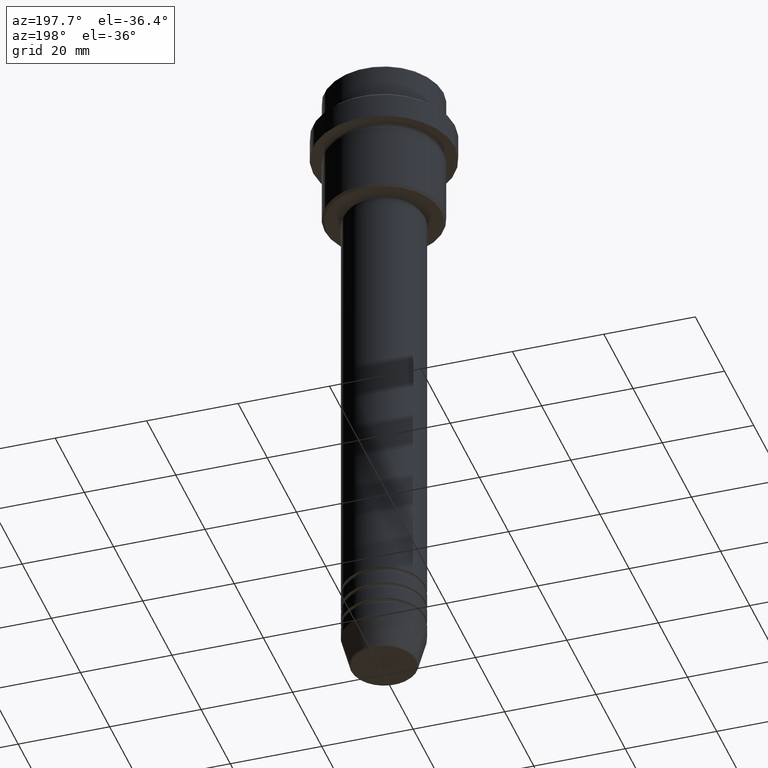
[diagram: clean part render]
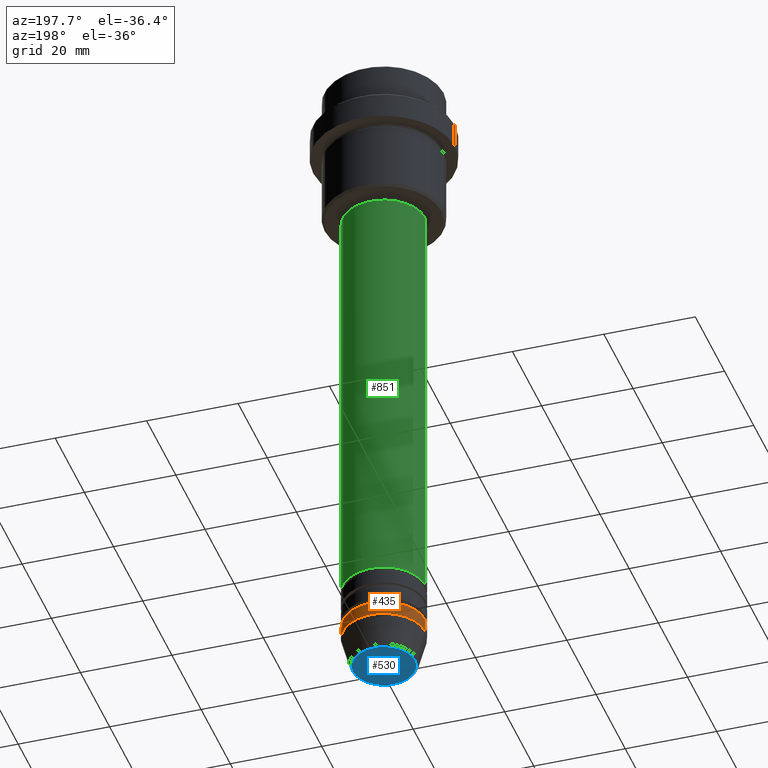
[diagram: same view with three faces highlighted in distinct colors, each labeled with its STEP entity id]
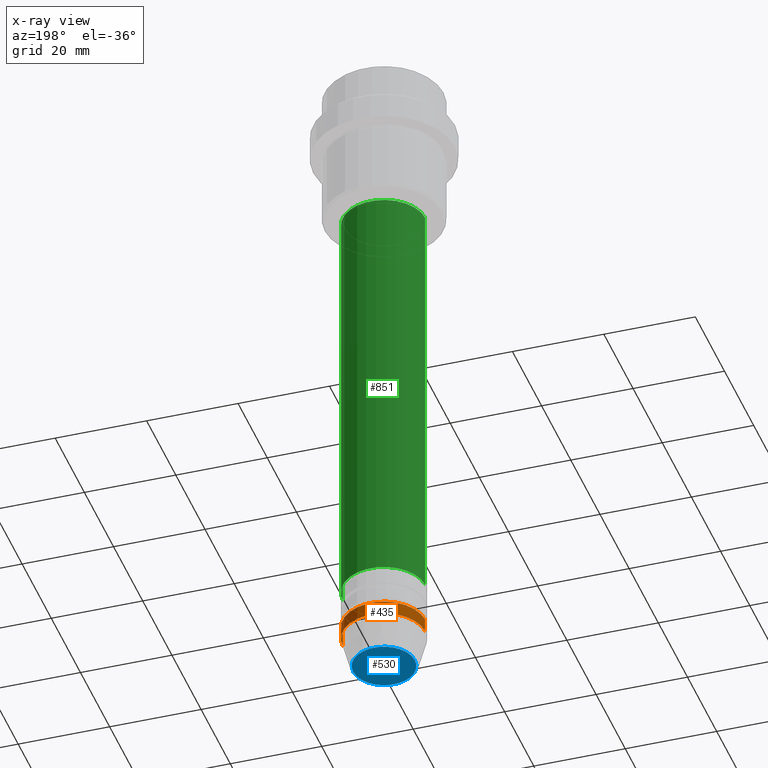
[diagram: x-ray of the same camera — body ghosted, the three highlighted faces saturated]
A machine part, auxiliary view with three faces highlighted in distinct colors.
The next image is the same camera in x-ray (body ghosted, the three faces saturated) — at least one of them is partly hidden behind the body in this view.
Their STEP definitions:

[orange] entity #435 — the highlighted cylindrical surface (partial cylindrical patch) has radius 9 mm, axis along (-0, -0, 1).
#8 = AXIS2_PLACEMENT_3D ( 'NONE', #1306, #543, #757 ) ;
#23 = CARTESIAN_POINT ( 'NONE',  ( 9.000000000000000000, 0.000000000000000000, -139.0000000000000000 ) ) ;
#72 = VERTEX_POINT ( 'NONE', #23 ) ;
#75 = DIRECTION ( 'NONE',  ( -0.000000000000000000, -0.000000000000000000, 1.000000000000000000 ) ) ;
#117 = DIRECTION ( 'NONE',  ( -0.000000000000000000, -0.000000000000000000, 1.000000000000000000 ) ) ;
#128 = LINE ( 'NONE', #657, #749 ) ;
#166 = FACE_OUTER_BOUND ( 'NONE', #1054, .T. ) ;
#291 = VECTOR ( 'NONE', #713, 1000.000000000000000 ) ;
#381 = DIRECTION ( 'NONE',  ( -0.000000000000000000, -0.000000000000000000, 1.000000000000000000 ) ) ;
#435 = ADVANCED_FACE ( 'NONE', ( #166 ), #1365, .T. ) ;
#447 = AXIS2_PLACEMENT_3D ( 'NONE', #1164, #75, #1296 ) ;
#468 = EDGE_CURVE ( 'NONE', #72, #866, #1258, .T. ) ;
#539 = ORIENTED_EDGE ( 'NONE', *, *, #468, .F. ) ;
#543 = DIRECTION ( 'NONE',  ( -0.000000000000000000, -0.000000000000000000, 1.000000000000000000 ) ) ;
#657 = CARTESIAN_POINT ( 'NONE',  ( -9.000000000000000000, 1.102182119232617714E-15, 0.000000000000000000 ) ) ;
#709 = EDGE_CURVE ( 'NONE', #72, #1135, #1062, .T. ) ;
#713 = DIRECTION ( 'NONE',  ( -0.000000000000000000, -0.000000000000000000, 1.000000000000000000 ) ) ;
#716 = ORIENTED_EDGE ( 'NONE', *, *, #709, .T. ) ;
#749 = VECTOR ( 'NONE', #117, 1000.000000000000000 ) ;
#757 = DIRECTION ( 'NONE',  ( 1.000000000000000000, 0.000000000000000000, 0.000000000000000000 ) ) ;
#773 = CARTESIAN_POINT ( 'NONE',  ( -9.000000000000000000, 1.102182119232617714E-15, -139.0000000000000000 ) ) ;
#774 = CARTESIAN_POINT ( 'NONE',  ( 9.000000000000000000, 0.000000000000000000, -136.0000000000000000 ) ) ;
#777 = CARTESIAN_POINT ( 'NONE',  ( -9.000000000000000000, 1.102182119232617714E-15, -136.0000000000000000 ) ) ;
#807 = ORIENTED_EDGE ( 'NONE', *, *, #873, .F. ) ;
#866 = VERTEX_POINT ( 'NONE', #774 ) ;
#873 = EDGE_CURVE ( 'NONE', #866, #1185, #1409, .T. ) ;
#925 = CARTESIAN_POINT ( 'NONE',  ( 0.000000000000000000, 0.000000000000000000, 0.000000000000000000 ) ) ;
#941 = CARTESIAN_POINT ( 'NONE',  ( 9.000000000000000000, 0.000000000000000000, 0.000000000000000000 ) ) ;
#1032 = ORIENTED_EDGE ( 'NONE', *, *, #1276, .T. ) ;
#1054 = EDGE_LOOP ( 'NONE', ( #716, #1032, #807, #539 ) ) ;
#1062 = CIRCLE ( 'NONE', #447, 9.000000000000000000 ) ;
#1135 = VERTEX_POINT ( 'NONE', #773 ) ;
#1164 = CARTESIAN_POINT ( 'NONE',  ( 0.000000000000000000, 0.000000000000000000, -139.0000000000000000 ) ) ;
#1185 = VERTEX_POINT ( 'NONE', #777 ) ;
#1258 = LINE ( 'NONE', #941, #291 ) ;
#1276 = EDGE_CURVE ( 'NONE', #1135, #1185, #128, .T. ) ;
#1291 = AXIS2_PLACEMENT_3D ( 'NONE', #925, #381, #1371 ) ;
#1296 = DIRECTION ( 'NONE',  ( 1.000000000000000000, 0.000000000000000000, 0.000000000000000000 ) ) ;
#1306 = CARTESIAN_POINT ( 'NONE',  ( 0.000000000000000000, 0.000000000000000000, -136.0000000000000000 ) ) ;
#1365 = CYLINDRICAL_SURFACE ( 'NONE', #1291, 9.000000000000000000 ) ;
#1371 = DIRECTION ( 'NONE',  ( 1.000000000000000000, 0.000000000000000000, 0.000000000000000000 ) ) ;
#1409 = CIRCLE ( 'NONE', #8, 9.000000000000000000 ) ;

[blue] entity #530 — the highlighted planar face has unit normal (0, -0, 1).
#6 = CARTESIAN_POINT ( 'NONE',  ( 0.000000000000000000, 0.000000000000000000, -146.0000000000000284 ) ) ;
#87 = ORIENTED_EDGE ( 'NONE', *, *, #610, .T. ) ;
#208 = VERTEX_POINT ( 'NONE', #911 ) ;
#312 = AXIS2_PLACEMENT_3D ( 'NONE', #347, #1014, #983 ) ;
#347 = CARTESIAN_POINT ( 'NONE',  ( 0.000000000000000000, 0.000000000000000000, -146.0000000000000284 ) ) ;
#473 = DIRECTION ( 'NONE',  ( 1.000000000000000000, 0.000000000000000000, 0.000000000000000000 ) ) ;
#530 = ADVANCED_FACE ( 'NONE', ( #803 ), #575, .F. ) ;
#554 = DIRECTION ( 'NONE',  ( 1.000000000000000000, 0.000000000000000000, 0.000000000000000000 ) ) ;
#575 = PLANE ( 'NONE',  #312 ) ;
#590 = CARTESIAN_POINT ( 'NONE',  ( -6.740692158992658278, 8.550696569392685681E-16, -146.0000000000000284 ) ) ;
#610 = EDGE_CURVE ( 'NONE', #208, #957, #988, .T. ) ;
#739 = ORIENTED_EDGE ( 'NONE', *, *, #1283, .T. ) ;
#803 = FACE_OUTER_BOUND ( 'NONE', #1393, .T. ) ;
#882 = DIRECTION ( 'NONE',  ( 0.000000000000000000, 0.000000000000000000, -1.000000000000000000 ) ) ;
#885 = DIRECTION ( 'NONE',  ( 0.000000000000000000, 0.000000000000000000, -1.000000000000000000 ) ) ;
#911 = CARTESIAN_POINT ( 'NONE',  ( 6.740692158992658278, 0.000000000000000000, -146.0000000000000284 ) ) ;
#930 = CIRCLE ( 'NONE', #1357, 6.740692158992658278 ) ;
#957 = VERTEX_POINT ( 'NONE', #590 ) ;
#983 = DIRECTION ( 'NONE',  ( 1.000000000000000000, 0.000000000000000000, 0.000000000000000000 ) ) ;
#988 = CIRCLE ( 'NONE', #1099, 6.740692158992658278 ) ;
#1014 = DIRECTION ( 'NONE',  ( 0.000000000000000000, -0.000000000000000000, 1.000000000000000000 ) ) ;
#1099 = AXIS2_PLACEMENT_3D ( 'NONE', #1103, #885, #473 ) ;
#1103 = CARTESIAN_POINT ( 'NONE',  ( 0.000000000000000000, 0.000000000000000000, -146.0000000000000284 ) ) ;
#1283 = EDGE_CURVE ( 'NONE', #957, #208, #930, .T. ) ;
#1357 = AXIS2_PLACEMENT_3D ( 'NONE', #6, #882, #554 ) ;
#1393 = EDGE_LOOP ( 'NONE', ( #87, #739 ) ) ;

[green] entity #851 — the highlighted cylindrical surface (partial cylindrical patch) has radius 9 mm, axis along (-0, -0, 1).
#11 = DIRECTION ( 'NONE',  ( 1.000000000000000000, 0.000000000000000000, 0.000000000000000000 ) ) ;
#49 = LINE ( 'NONE', #915, #649 ) ;
#63 = DIRECTION ( 'NONE',  ( 1.000000000000000000, 0.000000000000000000, 0.000000000000000000 ) ) ;
#129 = VERTEX_POINT ( 'NONE', #602 ) ;
#140 = CARTESIAN_POINT ( 'NONE',  ( -9.000000000000000000, 1.102182119232617714E-15, -126.9999999999998863 ) ) ;
#155 = EDGE_CURVE ( 'NONE', #129, #619, #1263, .T. ) ;
#219 = AXIS2_PLACEMENT_3D ( 'NONE', #564, #1092, #11 ) ;
#239 = ORIENTED_EDGE ( 'NONE', *, *, #1208, .F. ) ;
#267 = DIRECTION ( 'NONE',  ( -0.000000000000000000, -0.000000000000000000, 1.000000000000000000 ) ) ;
#297 = ORIENTED_EDGE ( 'NONE', *, *, #155, .T. ) ;
#443 = CARTESIAN_POINT ( 'NONE',  ( 9.000000000000001776, 0.000000000000000000, 0.000000000000000000 ) ) ;
#459 = EDGE_LOOP ( 'NONE', ( #297, #1075, #239, #582 ) ) ;
#564 = CARTESIAN_POINT ( 'NONE',  ( 0.000000000000000000, 0.000000000000000000, 0.000000000000000000 ) ) ;
#582 = ORIENTED_EDGE ( 'NONE', *, *, #834, .F. ) ;
#602 = CARTESIAN_POINT ( 'NONE',  ( 9.000000000000000000, 0.000000000000000000, -126.9999999999998863 ) ) ;
#619 = VERTEX_POINT ( 'NONE', #140 ) ;
#649 = VECTOR ( 'NONE', #267, 1000.000000000000000 ) ;
#652 = CARTESIAN_POINT ( 'NONE',  ( 0.000000000000000000, 0.000000000000000000, -32.00000000000000000 ) ) ;
#662 = DIRECTION ( 'NONE',  ( 1.000000000000000000, 0.000000000000000000, 0.000000000000000000 ) ) ;
#802 = CARTESIAN_POINT ( 'NONE',  ( 9.000000000000001776, 0.000000000000000000, -32.00000000000000000 ) ) ;
#834 = EDGE_CURVE ( 'NONE', #129, #1027, #992, .T. ) ;
#851 = ADVANCED_FACE ( 'NONE', ( #865 ), #1415, .T. ) ;
#865 = FACE_OUTER_BOUND ( 'NONE', #459, .T. ) ;
#915 = CARTESIAN_POINT ( 'NONE',  ( -9.000000000000001776, 1.102182119232617911E-15, 0.000000000000000000 ) ) ;
#992 = LINE ( 'NONE', #443, #1129 ) ;
#1025 = CARTESIAN_POINT ( 'NONE',  ( 0.000000000000000000, 0.000000000000000000, -126.9999999999998863 ) ) ;
#1027 = VERTEX_POINT ( 'NONE', #802 ) ;
#1055 = EDGE_CURVE ( 'NONE', #619, #1136, #49, .T. ) ;
#1075 = ORIENTED_EDGE ( 'NONE', *, *, #1055, .T. ) ;
#1086 = DIRECTION ( 'NONE',  ( -0.000000000000000000, -0.000000000000000000, 1.000000000000000000 ) ) ;
#1092 = DIRECTION ( 'NONE',  ( -0.000000000000000000, -0.000000000000000000, 1.000000000000000000 ) ) ;
#1129 = VECTOR ( 'NONE', #1204, 1000.000000000000000 ) ;
#1136 = VERTEX_POINT ( 'NONE', #1330 ) ;
#1147 = DIRECTION ( 'NONE',  ( -0.000000000000000000, -0.000000000000000000, 1.000000000000000000 ) ) ;
#1152 = AXIS2_PLACEMENT_3D ( 'NONE', #1025, #1147, #63 ) ;
#1199 = AXIS2_PLACEMENT_3D ( 'NONE', #652, #1086, #662 ) ;
#1204 = DIRECTION ( 'NONE',  ( -0.000000000000000000, -0.000000000000000000, 1.000000000000000000 ) ) ;
#1208 = EDGE_CURVE ( 'NONE', #1027, #1136, #1367, .T. ) ;
#1263 = CIRCLE ( 'NONE', #1152, 9.000000000000000000 ) ;
#1330 = CARTESIAN_POINT ( 'NONE',  ( -9.000000000000001776, 1.102182119232617911E-15, -32.00000000000000000 ) ) ;
#1367 = CIRCLE ( 'NONE', #1199, 9.000000000000001776 ) ;
#1415 = CYLINDRICAL_SURFACE ( 'NONE', #219, 9.000000000000001776 ) ;